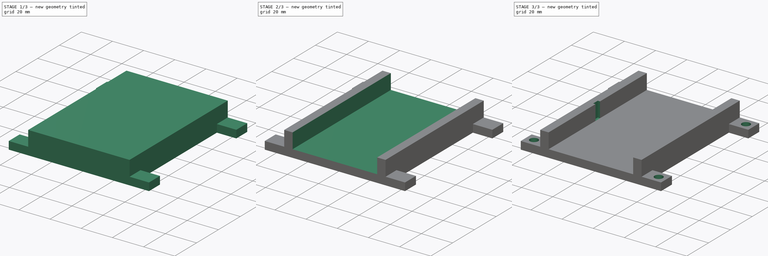
[diagram: build sequence overview — one tinted view per stage of 3, left to right]
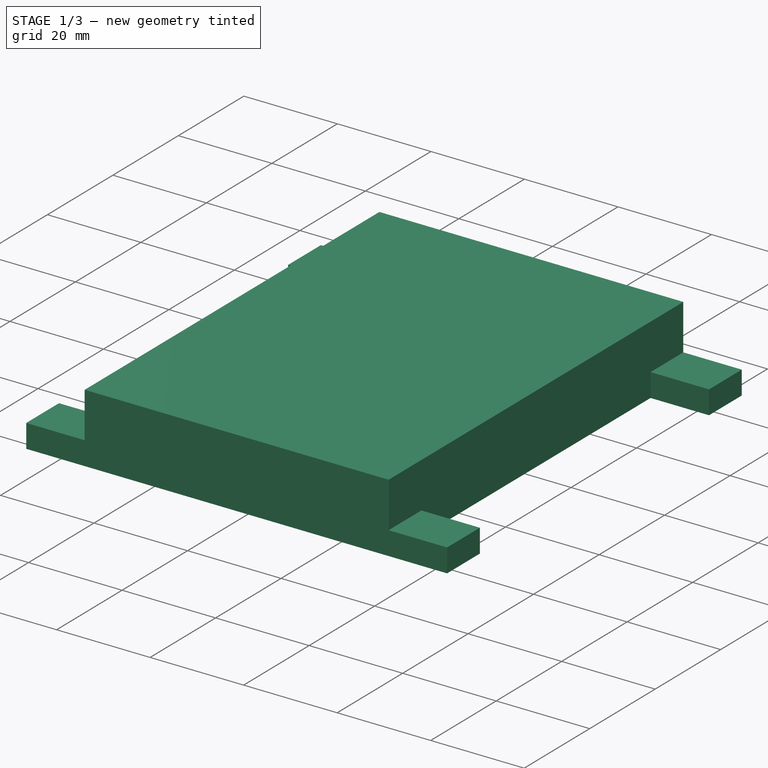
[diagram: stage 1 of 3 — iso view after this stage's code; geometry added in this stage tinted green]
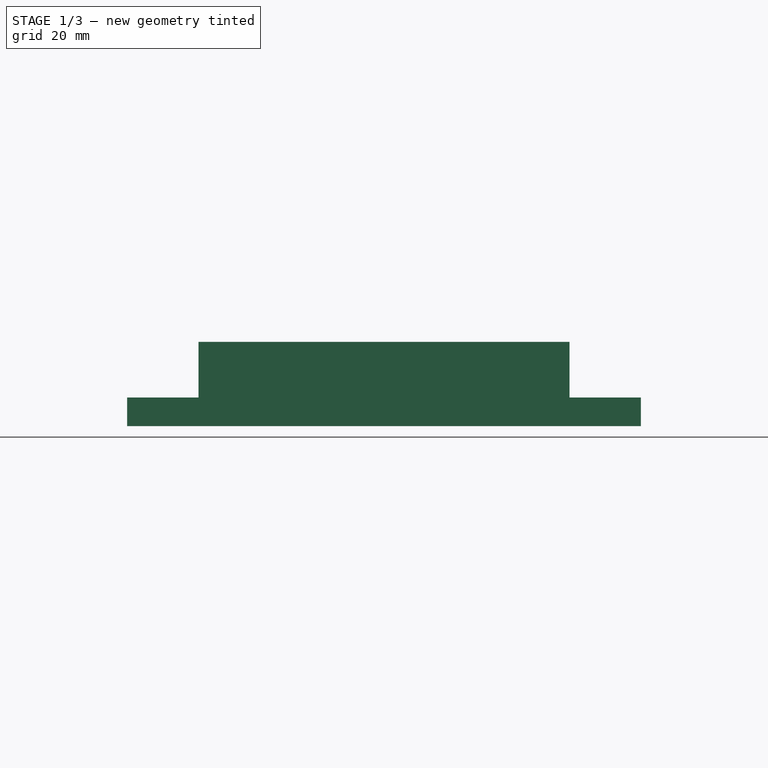
[diagram: stage 1 of 3 — front view after this stage's code; geometry added in this stage tinted green]
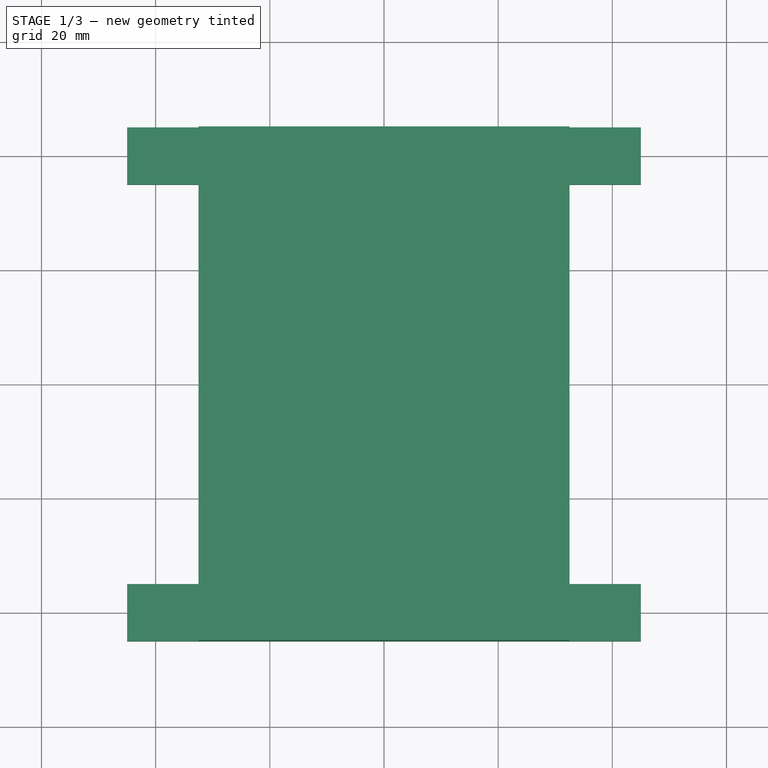
[diagram: stage 1 of 3 — top view after this stage's code; geometry added in this stage tinted green]
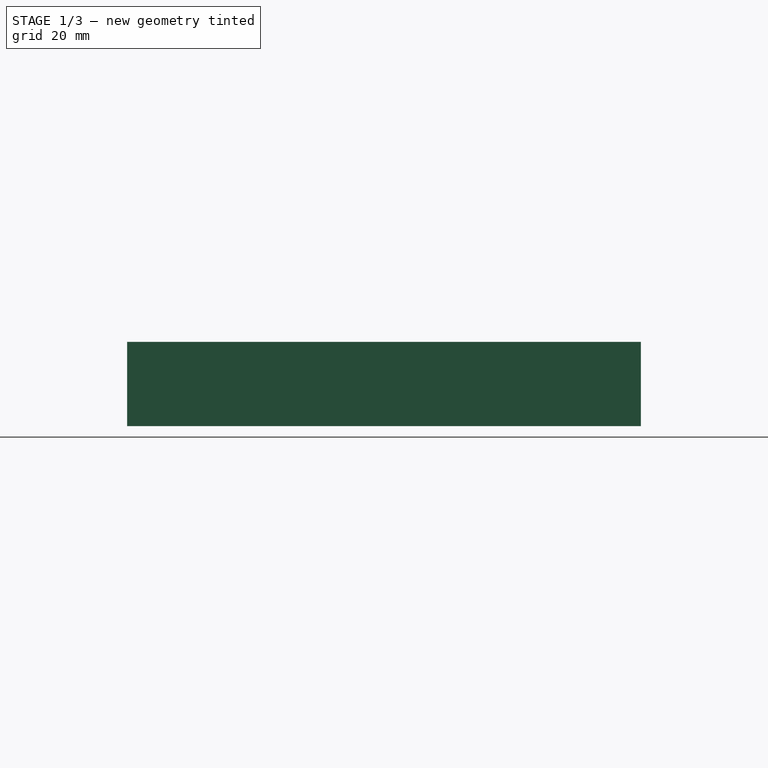
[diagram: stage 1 of 3 — right view after this stage's code; geometry added in this stage tinted green]
FCSTD DOCUMENT  (FreeCAD 0.21R33771 (Git))
Label: BreadBoardMount-0
License: All rights reserved
LicenseURL: https://en.wikipedia.org/wiki/All_rights_reserved
objects: Sketcher::SketchObject×5, PartDesign::Pocket×3, PartDesign::Pad×2, PartDesign::Body×1
note: 16 computed .brp shape members not serialized (recipe doc carries the construction recipe); baked Part::Feature solids carry a one-line shape summary decoded from their .brp

FEATURE [Sketcher::SketchObject] Sketch
  FullyConstrained = true
  MapMode = 5
  Support = -> [XY_Plane]
  sketch-geometry (12):
    g0: LineSegment StartX=-32.5 StartY=35 StartZ=0 EndX=-45 EndY=35 EndZ=0
    g1: LineSegment StartX=-45 StartY=35 StartZ=0 EndX=-45 EndY=45 EndZ=0
    g2: LineSegment StartX=-45 StartY=45 StartZ=0 EndX=45 EndY=45 EndZ=0
    g3: LineSegment StartX=45 StartY=45 StartZ=0 EndX=45 EndY=35 EndZ=0
    g4: LineSegment StartX=45 StartY=35 StartZ=0 EndX=32.5 EndY=35 EndZ=0
    g5: LineSegment StartX=32.5 StartY=35 StartZ=0 EndX=32.5 EndY=-35 EndZ=0
    g6: LineSegment StartX=32.5 StartY=-35 StartZ=0 EndX=45 EndY=-35 EndZ=0
    g7: LineSegment StartX=45 StartY=-35 StartZ=0 EndX=45 EndY=-45 EndZ=0
    g8: LineSegment StartX=45 StartY=-45 StartZ=0 EndX=-45 EndY=-45 EndZ=0
    g9: LineSegment StartX=-45 StartY=-45 StartZ=0 EndX=-45 EndY=-35 EndZ=0
    g10: LineSegment StartX=-45 StartY=-35 StartZ=0 EndX=-32.5 EndY=-35 EndZ=0
    g11: LineSegment StartX=-32.5 StartY=-35 StartZ=0 EndX=-32.5 EndY=35 EndZ=0
  constraints (36):
    c: Horizontal(g0)
    c: Coincident(g0,g1)
    c: Vertical(g1)
    c: Coincident(g1,g2)
    c: Horizontal(g2)
    c: Coincident(g2,g3)
    c: Coincident(g3,g4)
    c: Horizontal(g4)
    c: Coincident(g4,g5)
    c: Vertical(g5)
    c: Coincident(g5,g6)
    c: Coincident(g6,g7)
    c: Vertical(g7)
    c: Coincident(g7,g8)
    c: Horizontal(g8)
    c: Coincident(g8,g9)
    c: Coincident(g9,g10)
    c: Horizontal(g10)
    c: Coincident(g10,g11)
    c: Coincident(g11,g0)
    c: Vertical(g11)
    c: Vertical(g9)
    c: Vertical(g3)
    c: Horizontal(g6)
    c: DistanceX(g0,g4) = 65
    c: DistanceY(g0,g1) = 10
    c: DistanceY(g8,g9) = 10
    c: DistanceY(g7,g6) = 10
    c: DistanceY(g3,g2) = 10
    c: DistanceX(g1,g2) = 90
    c: DistanceX(g8,g7) = 90
    c: DistanceY(g7,g2) = 90
    c: DistanceX(g4,g3) = 12.5
    c: DistanceX(g9,g10) = 12.5
    c: DistanceX(g1,g-1) = 45
    c: DistanceY(g7,g-1) = 45
FEATURE [PartDesign::Pad] Pad
  Direction = (0,0,1)
  Length = 5
  Length2 = 10
  Profile = -> Sketch
  ReferenceAxis = -> Sketch [N_Axis]
  Type = 0
FEATURE [Sketcher::SketchObject] Sketch001
  ExternalGeometry = -> [Pad]
  FullyConstrained = true
  MapMode = 5
  Placement = pos=(0,0,5) rot=(0,0,1;0rad)
  Support = -> [Pad]
  sketch-geometry (4):
    g0: LineSegment StartX=32.5 StartY=-45 StartZ=0 EndX=32.5 EndY=45 EndZ=0
    g1: LineSegment StartX=32.5 StartY=45 StartZ=0 EndX=-32.5 EndY=45 EndZ=0
    g2: LineSegment StartX=-32.5 StartY=45 StartZ=0 EndX=-32.5 EndY=-45 EndZ=0
    g3: LineSegment StartX=-32.5 StartY=-45 StartZ=0 EndX=32.5 EndY=-45 EndZ=0
  constraints (12):
    c: PointOnObject(g0,g-4)
    c: PointOnObject(g0,g-3)
    c: Vertical(g0)
    c: Coincident(g0,g1)
    c: PointOnObject(g1,g-3)
    c: Coincident(g1,g2)
    c: PointOnObject(g2,g-4)
    c: Vertical(g2)
    c: Coincident(g2,g3)
    c: Coincident(g3,g0)
    c: PointOnObject(g-5,g2)
    c: PointOnObject(g-6,g0)
FEATURE [PartDesign::Pad] Pad001
  BaseFeature = -> Pad
  Direction = (0,0,1)
  Length = 9.75
  Length2 = 10
  Profile = -> Sketch001
  ReferenceAxis = -> Sketch001 [N_Axis]
  Type = 0
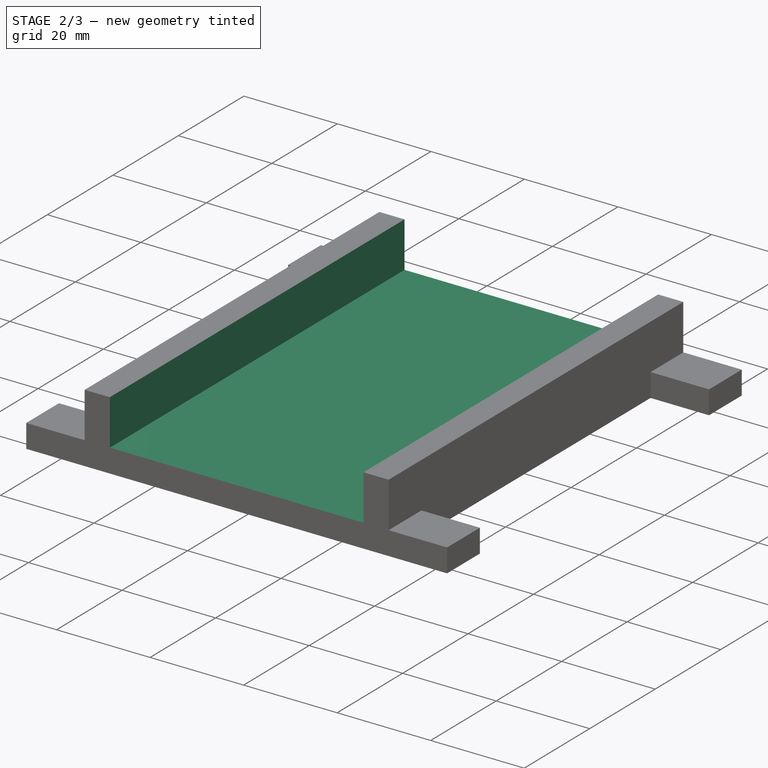
[diagram: stage 2 of 3 — iso view after this stage's code; geometry added in this stage tinted green]
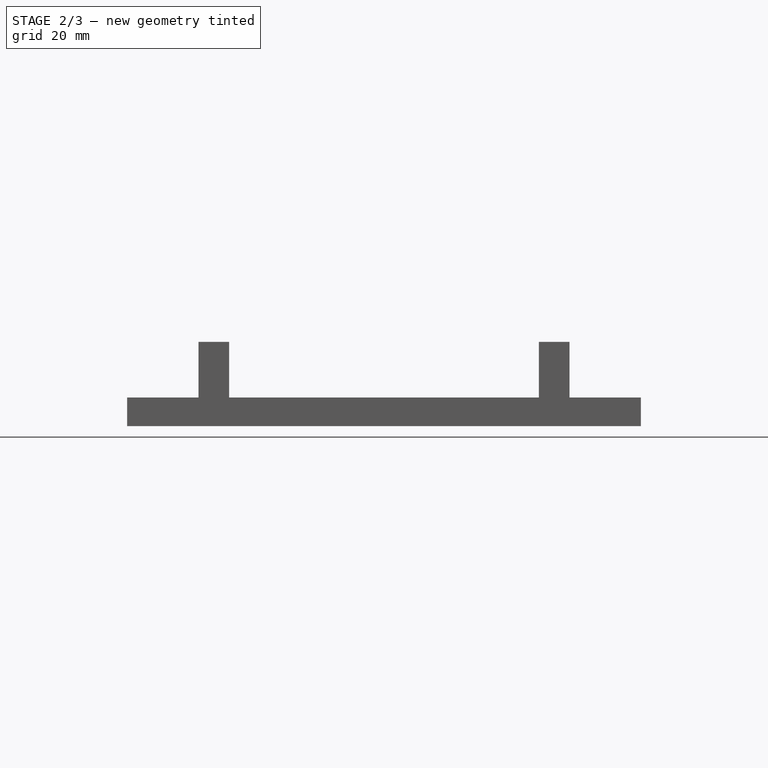
[diagram: stage 2 of 3 — front view after this stage's code; geometry added in this stage tinted green]
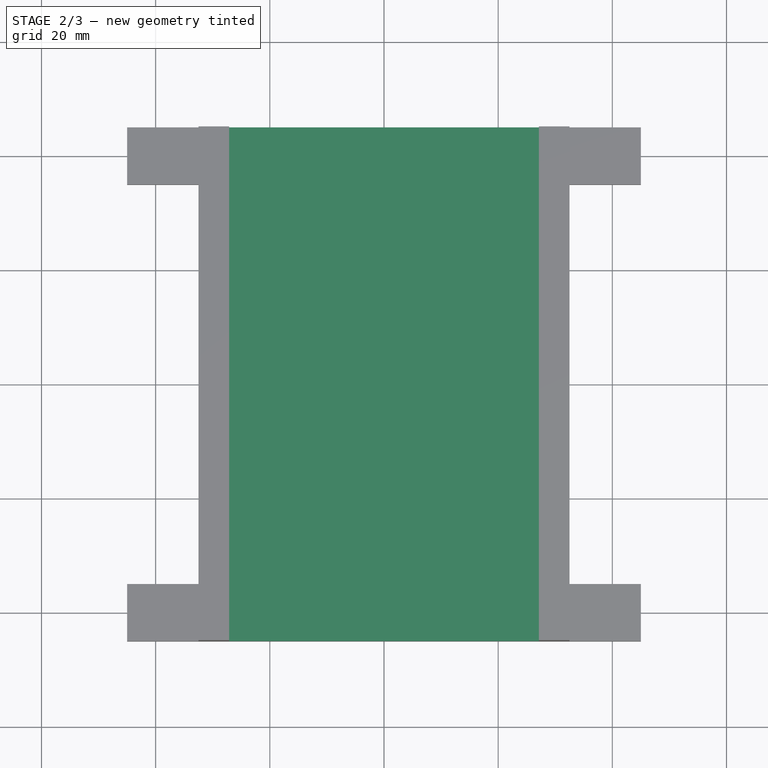
[diagram: stage 2 of 3 — top view after this stage's code; geometry added in this stage tinted green]
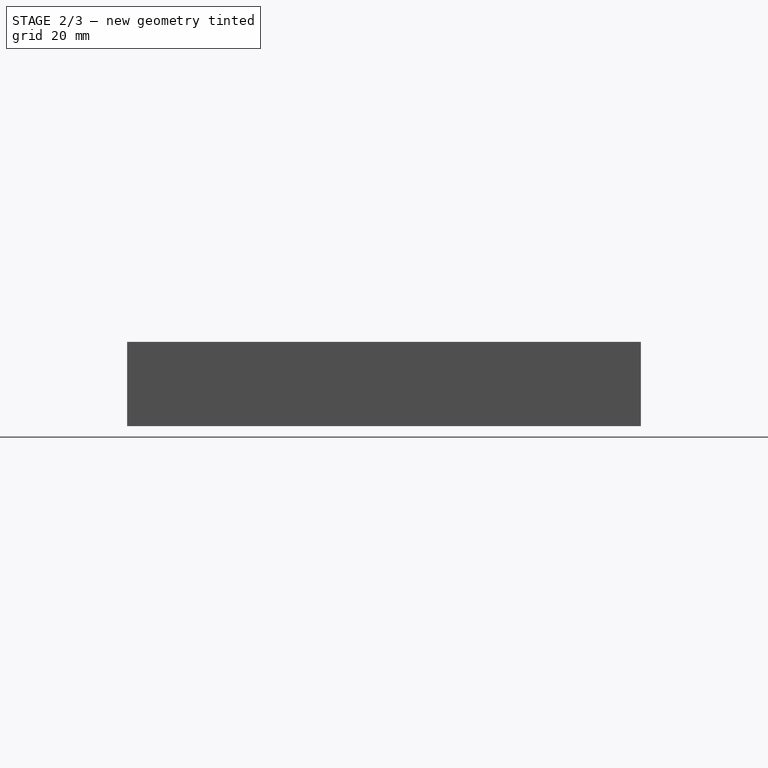
[diagram: stage 2 of 3 — right view after this stage's code; geometry added in this stage tinted green]
FEATURE [Sketcher::SketchObject] Sketch002
  ExternalGeometry = -> [Pad001]
  FullyConstrained = true
  MapMode = 5
  Placement = pos=(0,0,14.75) rot=(0,0,1;0rad)
  Support = -> [Pad001]
  sketch-geometry (4):
    g0: LineSegment StartX=-27.125 StartY=45 StartZ=0 EndX=27.125 EndY=45 EndZ=0
    g1: LineSegment StartX=27.125 StartY=45 StartZ=0 EndX=27.125 EndY=-45 EndZ=0
    g2: LineSegment StartX=27.125 StartY=-45 StartZ=0 EndX=-27.125 EndY=-45 EndZ=0
    g3: LineSegment StartX=-27.125 StartY=-45 StartZ=0 EndX=-27.125 EndY=45 EndZ=0
  constraints (12):
    c: PointOnObject(g0,g-3)
    c: PointOnObject(g0,g-3)
    c: Coincident(g0,g1)
    c: PointOnObject(g1,g-4)
    c: Vertical(g1)
    c: Coincident(g1,g2)
    c: PointOnObject(g2,g-4)
    c: Coincident(g2,g3)
    c: Coincident(g3,g0)
    c: Vertical(g3)
    c: DistanceX(g-3,g0) = 5.375
    c: DistanceX(g0,g-3) = 5.375
FEATURE [PartDesign::Pocket] Pocket
  BaseFeature = -> Pad001
  Direction = (0,0,-1)
  Length = 9.75
  Length2 = 5
  Profile = -> Sketch002
  ReferenceAxis = -> Sketch002 [N_Axis]
  Type = 0
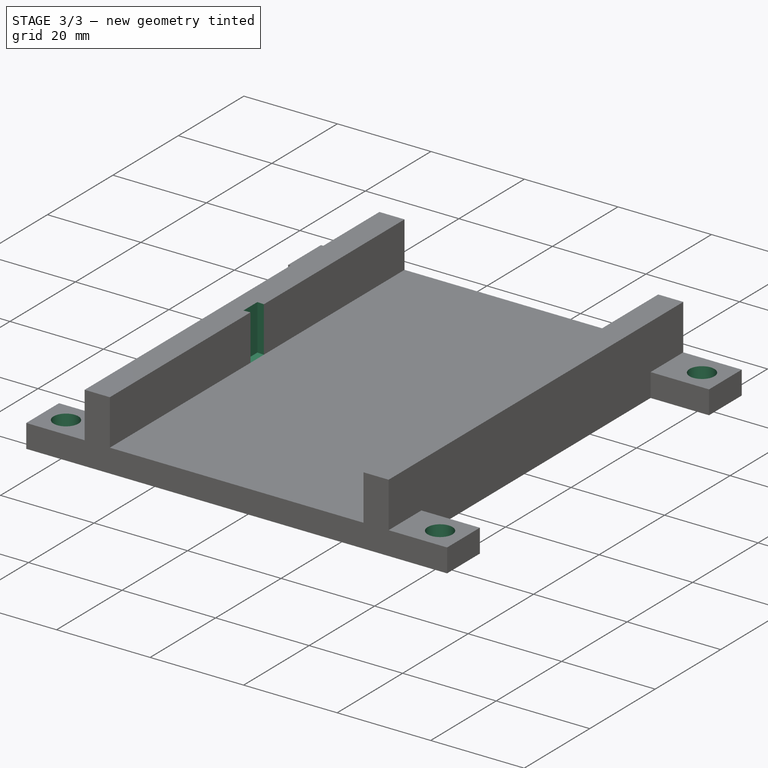
[diagram: stage 3 of 3 — iso view after this stage's code; geometry added in this stage tinted green]
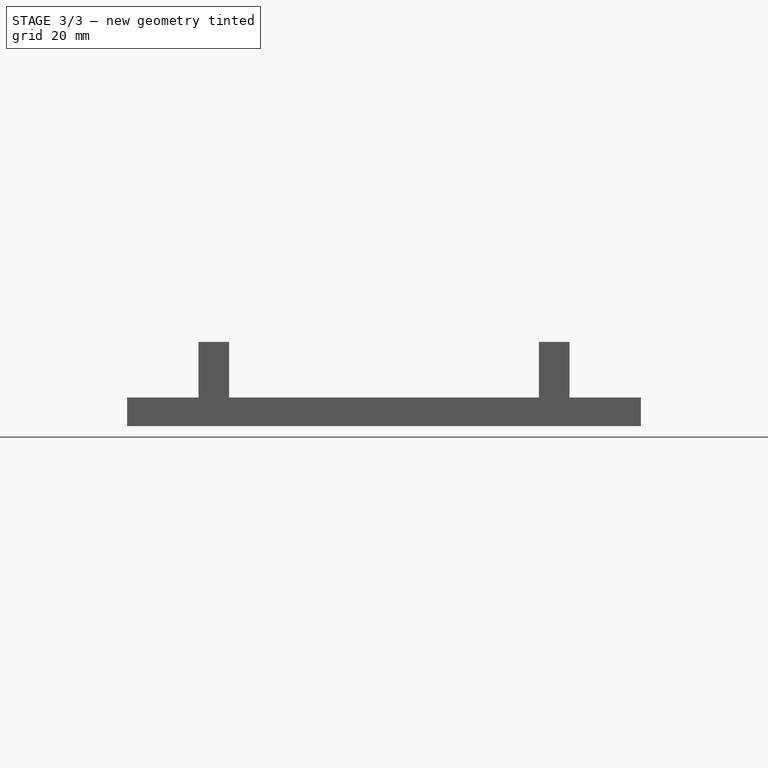
[diagram: stage 3 of 3 — front view after this stage's code; geometry added in this stage tinted green]
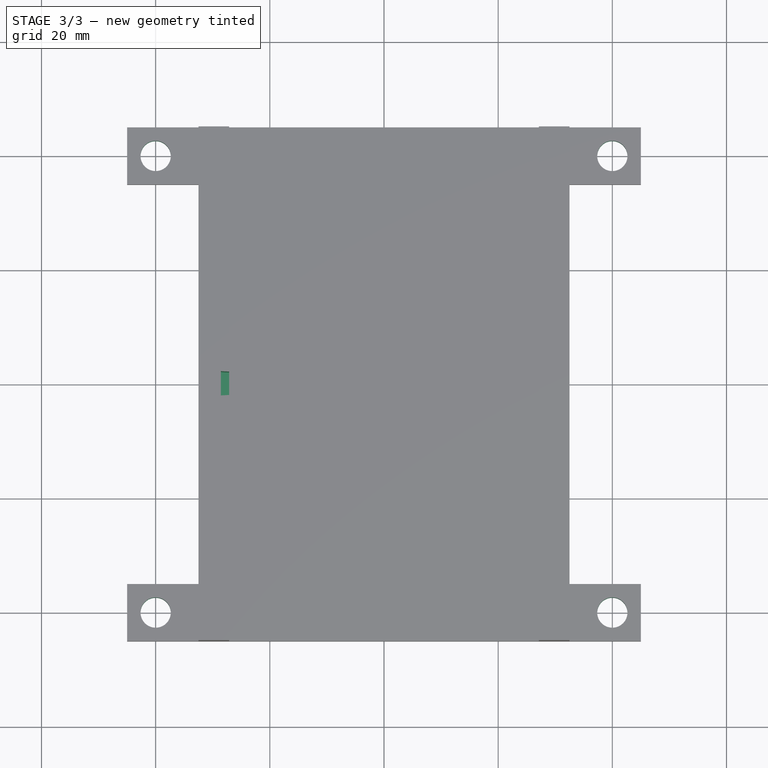
[diagram: stage 3 of 3 — top view after this stage's code; geometry added in this stage tinted green]
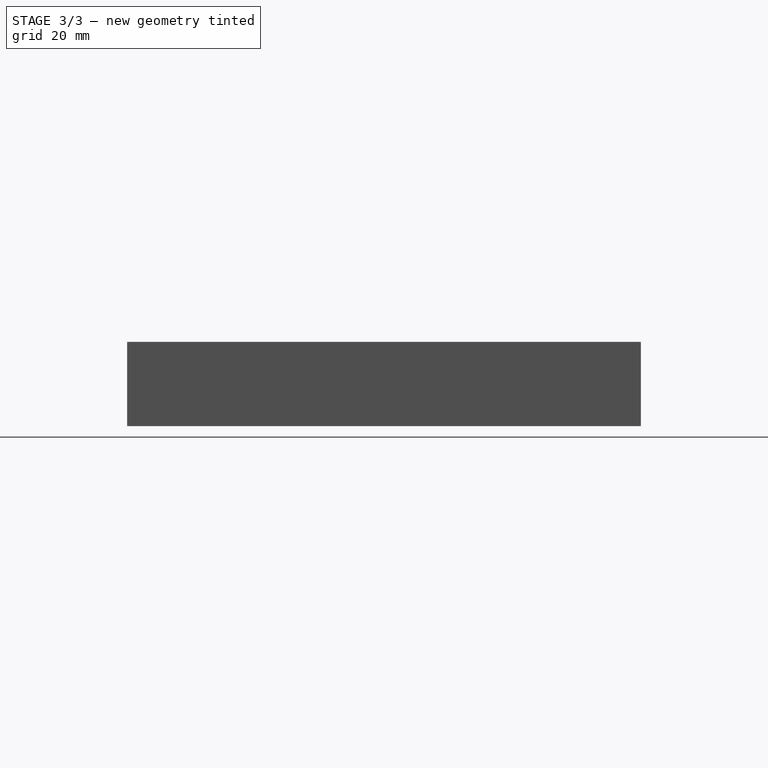
[diagram: stage 3 of 3 — right view after this stage's code; geometry added in this stage tinted green]
FEATURE [Sketcher::SketchObject] Sketch003
  ExternalGeometry = -> [Pocket]
  FullyConstrained = true
  MapMode = 5
  Placement = pos=(0,0,14.75) rot=(0,0,1;0rad)
  Support = -> [Pocket]
  sketch-geometry (4):
    g0: LineSegment StartX=-27.125 StartY=-2.05 StartZ=0 EndX=-28.575 EndY=-2.125 EndZ=0
    g1: LineSegment StartX=-28.575 StartY=-2.125 StartZ=0 EndX=-28.575 EndY=2.125 EndZ=0
    g2: LineSegment StartX=-28.575 StartY=2.125 StartZ=0 EndX=-27.125 EndY=2.05 EndZ=0
    g3: LineSegment StartX=-27.125 StartY=2.05 StartZ=0 EndX=-27.125 EndY=-2.05 EndZ=0
  constraints (12):
    c: PointOnObject(g0,g-3)
    c: Coincident(g0,g1)
    c: Coincident(g1,g2)
    c: PointOnObject(g2,g-3)
    c: Coincident(g2,g3)
    c: Coincident(g3,g0)
    c: DistanceY(g0,g-1) = 2.05
    c: DistanceY(g-1,g2) = 2.05
    c: Vertical(g1)
    c: DistanceY(g-1,g1) = 2.125
    c: DistanceY(g0,g-1) = 2.125
    c: DistanceX(g1,g2) = 1.45
FEATURE [PartDesign::Pocket] Pocket001
  BaseFeature = -> Pocket
  Direction = (0,0,-1)
  Length = 9.75
  Length2 = 5
  Profile = -> Sketch003
  ReferenceAxis = -> Sketch003 [N_Axis]
  Type = 0
FEATURE [Sketcher::SketchObject] Sketch004
  FullyConstrained = true
  MapMode = 5
  Placement = pos=(0,0,5) rot=(0,0,1;0rad)
  Support = -> [Pocket001]
  sketch-geometry (4):
    g0: Circle CenterX=-40 CenterY=40 CenterZ=0 NormalX=0 NormalY=0 NormalZ=1 AngleXU=0 Radius=2.65
    g1: Circle CenterX=40 CenterY=40 CenterZ=0 NormalX=0 NormalY=0 NormalZ=1 AngleXU=0 Radius=2.65
    g2: Circle CenterX=40 CenterY=-40 CenterZ=0 NormalX=0 NormalY=0 NormalZ=1 AngleXU=0 Radius=2.65
    g3: Circle CenterX=-40 CenterY=-40 CenterZ=0 NormalX=0 NormalY=0 NormalZ=1 AngleXU=0 Radius=2.65
  constraints (12):
    c: DistanceX(g0,g-1) = 40
    c: DistanceX(g3,g-1) = 40
    c: DistanceX(g-1,g2) = 40
    c: DistanceX(g-1,g1) = 40
    c: DistanceY(g2,g-1) = 40
    c: DistanceY(g3,g-1) = 40
    c: DistanceY(g-1,g0) = 40
    c: DistanceY(g-1,g1) = 40
    c: Diameter(g1) = 5.3
    c: Diameter(g2) = 5.3
    c: Diameter(g3) = 5.3
    c: Diameter(g0) = 5.3
FEATURE [PartDesign::Pocket] Pocket002
  BaseFeature = -> Pocket001
  Direction = (0,0,-1)
  Length = 5
  Length2 = 5
  Profile = -> Sketch004
  ReferenceAxis = -> Sketch004 [N_Axis]
  Type = 0
FEATURE [PartDesign::Body] Body
  Group = -> [Sketch,Pad,Sketch001,Pad001,Sketch002,Pocket,Sketch003,Pocket001,Sketch004,Pocket002]
  Origin = -> Origin
  Tip = -> Pocket002
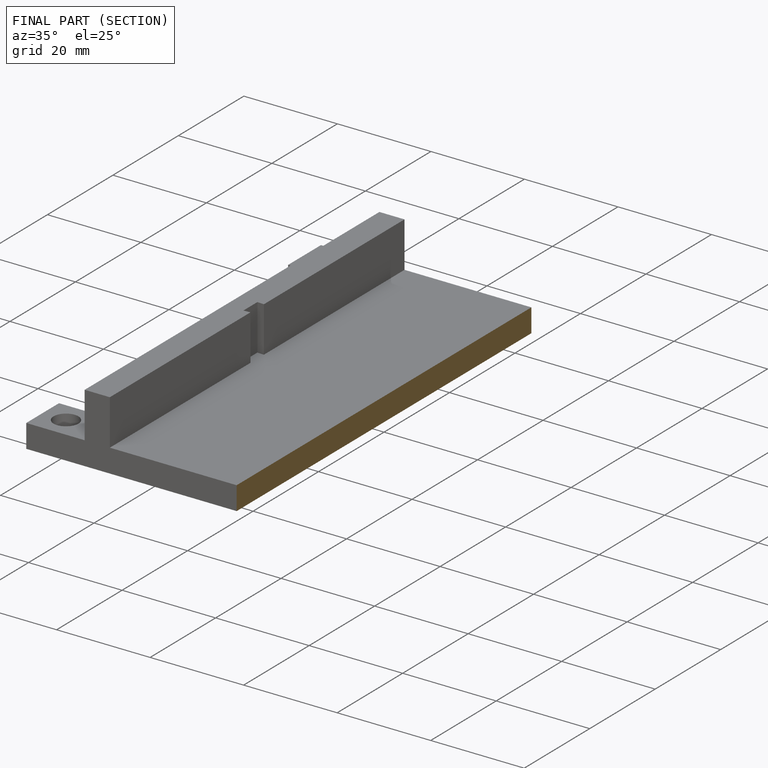
[diagram: finished part — half-section view (interior)]
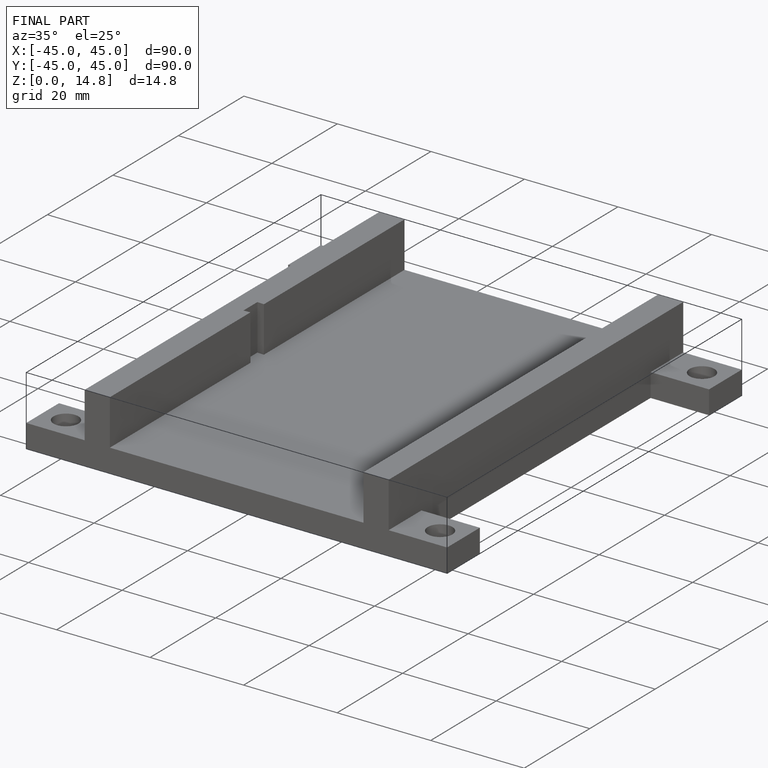
[diagram: finished part — iso view with bounding-box wireframe]
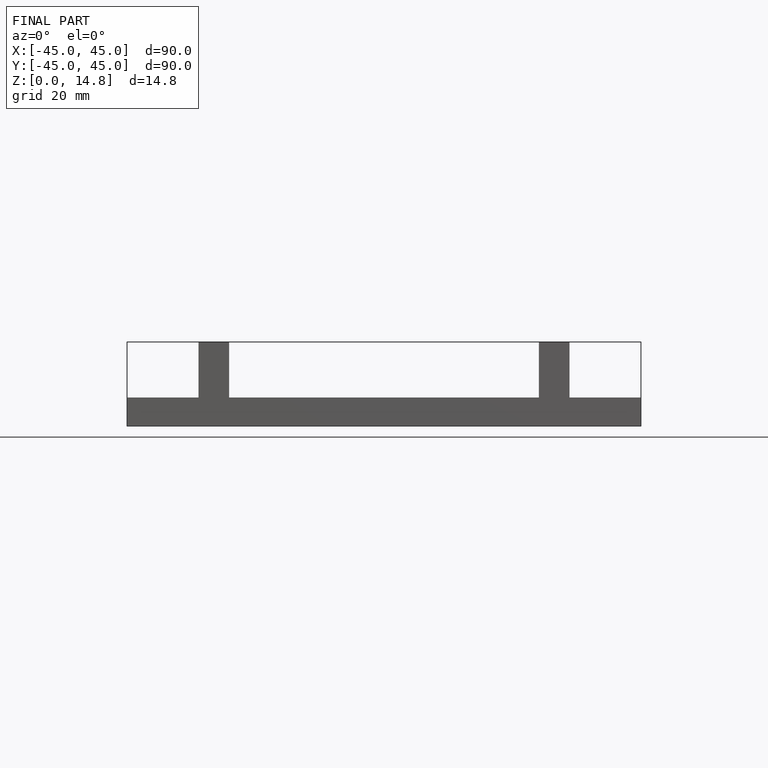
[diagram: finished part — front view with bounding-box wireframe]
